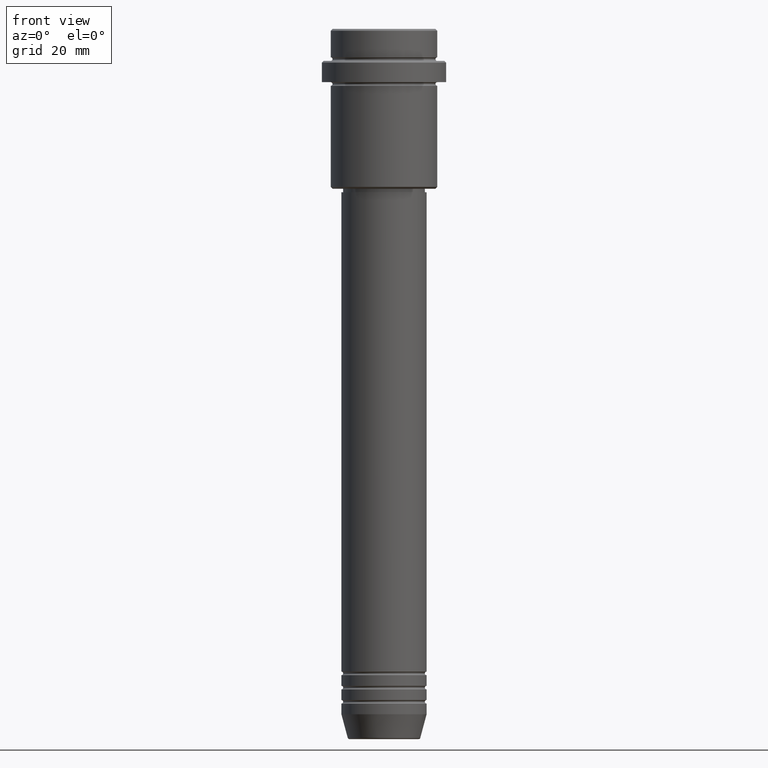
[diagram: clean part render]
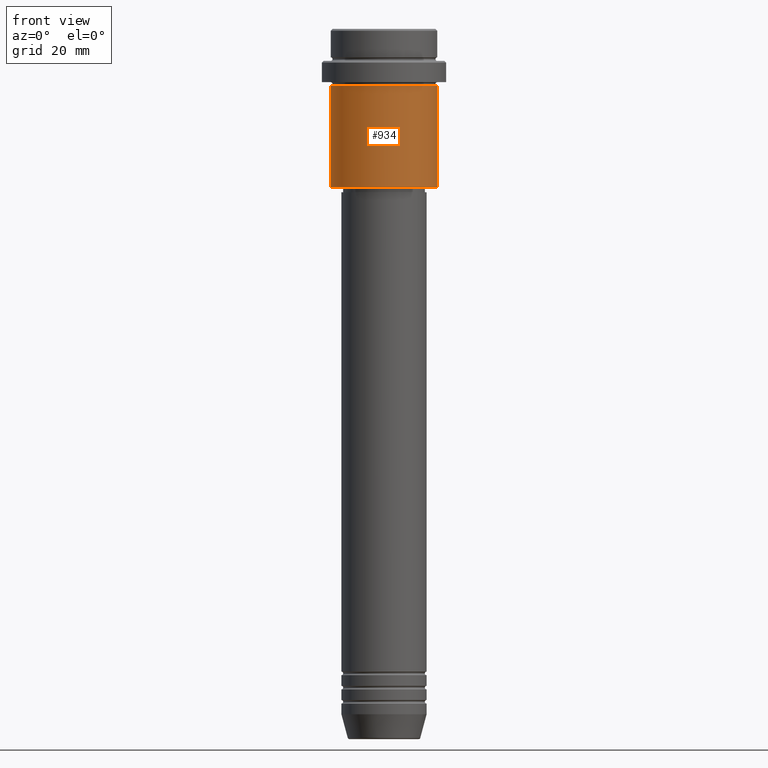
[diagram: same view with one face highlighted and labeled with its STEP entity id]
A machine part, front view. The second image highlights one B-rep face of the part: STEP entity #934.
In plain terms, the highlighted cylindrical surface (partial cylindrical patch) has radius 15 mm, axis along (-0, -0, 1).
Its self-contained STEP definition (entity closure, byte-faithful):
#2 = CARTESIAN_POINT ( 'NONE',  ( -15.00000000000000000, 1.836970198721029589E-15, -44.50000000000000711 ) ) ;
#151 = CARTESIAN_POINT ( 'NONE',  ( 15.00000000000000000, 0.000000000000000000, 0.000000000000000000 ) ) ;
#265 = CARTESIAN_POINT ( 'NONE',  ( 0.000000000000000000, 0.000000000000000000, 0.000000000000000000 ) ) ;
#267 = DIRECTION ( 'NONE',  ( -0.000000000000000000, -0.000000000000000000, 1.000000000000000000 ) ) ;
#270 = VECTOR ( 'NONE', #1087, 1000.000000000000000 ) ;
#277 = DIRECTION ( 'NONE',  ( -0.000000000000000000, -0.000000000000000000, 1.000000000000000000 ) ) ;
#311 = ORIENTED_EDGE ( 'NONE', *, *, #1397, .F. ) ;
#330 = CARTESIAN_POINT ( 'NONE',  ( -15.00000000000000000, 1.836970198721029589E-15, 0.000000000000000000 ) ) ;
#351 = DIRECTION ( 'NONE',  ( -0.000000000000000000, -0.000000000000000000, 1.000000000000000000 ) ) ;
#378 = DIRECTION ( 'NONE',  ( -1.000000000000000000, 0.000000000000000000, 0.000000000000000000 ) ) ;
#444 = DIRECTION ( 'NONE',  ( -0.000000000000000000, -0.000000000000000000, 1.000000000000000000 ) ) ;
#445 = VERTEX_POINT ( 'NONE', #2 ) ;
#500 = DIRECTION ( 'NONE',  ( 1.000000000000000000, 0.000000000000000000, 0.000000000000000000 ) ) ;
#507 = CIRCLE ( 'NONE', #695, 15.00000000000000000 ) ;
#512 = CYLINDRICAL_SURFACE ( 'NONE', #1368, 15.00000000000000000 ) ;
#555 = VERTEX_POINT ( 'NONE', #586 ) ;
#559 = CARTESIAN_POINT ( 'NONE',  ( 15.00000000000000000, 0.000000000000000000, -44.50000000000000711 ) ) ;
#569 = LINE ( 'NONE', #151, #1102 ) ;
#573 = AXIS2_PLACEMENT_3D ( 'NONE', #1294, #444, #661 ) ;
#586 = CARTESIAN_POINT ( 'NONE',  ( 15.00000000000000178, 0.000000000000000000, -16.00000000000000000 ) ) ;
#661 = DIRECTION ( 'NONE',  ( 1.000000000000000000, 0.000000000000000000, 0.000000000000000000 ) ) ;
#662 = EDGE_CURVE ( 'NONE', #445, #889, #507, .T. ) ;
#685 = FACE_OUTER_BOUND ( 'NONE', #1241, .T. ) ;
#695 = AXIS2_PLACEMENT_3D ( 'NONE', #923, #267, #378 ) ;
#750 = VERTEX_POINT ( 'NONE', #1386 ) ;
#778 = ORIENTED_EDGE ( 'NONE', *, *, #1295, .F. ) ;
#884 = ORIENTED_EDGE ( 'NONE', *, *, #662, .T. ) ;
#889 = VERTEX_POINT ( 'NONE', #559 ) ;
#923 = CARTESIAN_POINT ( 'NONE',  ( 0.000000000000000000, 0.000000000000000000, -44.50000000000000711 ) ) ;
#934 = ADVANCED_FACE ( 'NONE', ( #685 ), #512, .T. ) ;
#1045 = ORIENTED_EDGE ( 'NONE', *, *, #1190, .T. ) ;
#1087 = DIRECTION ( 'NONE',  ( -0.000000000000000000, -0.000000000000000000, 1.000000000000000000 ) ) ;
#1102 = VECTOR ( 'NONE', #351, 1000.000000000000000 ) ;
#1190 = EDGE_CURVE ( 'NONE', #889, #555, #569, .T. ) ;
#1205 = LINE ( 'NONE', #330, #270 ) ;
#1241 = EDGE_LOOP ( 'NONE', ( #311, #884, #1045, #778 ) ) ;
#1294 = CARTESIAN_POINT ( 'NONE',  ( 0.000000000000000000, 0.000000000000000000, -16.00000000000000000 ) ) ;
#1295 = EDGE_CURVE ( 'NONE', #750, #555, #1391, .T. ) ;
#1368 = AXIS2_PLACEMENT_3D ( 'NONE', #265, #277, #500 ) ;
#1386 = CARTESIAN_POINT ( 'NONE',  ( -15.00000000000000355, 1.836970198721029983E-15, -16.00000000000000000 ) ) ;
#1391 = CIRCLE ( 'NONE', #573, 15.00000000000000178 ) ;
#1397 = EDGE_CURVE ( 'NONE', #445, #750, #1205, .T. ) ;